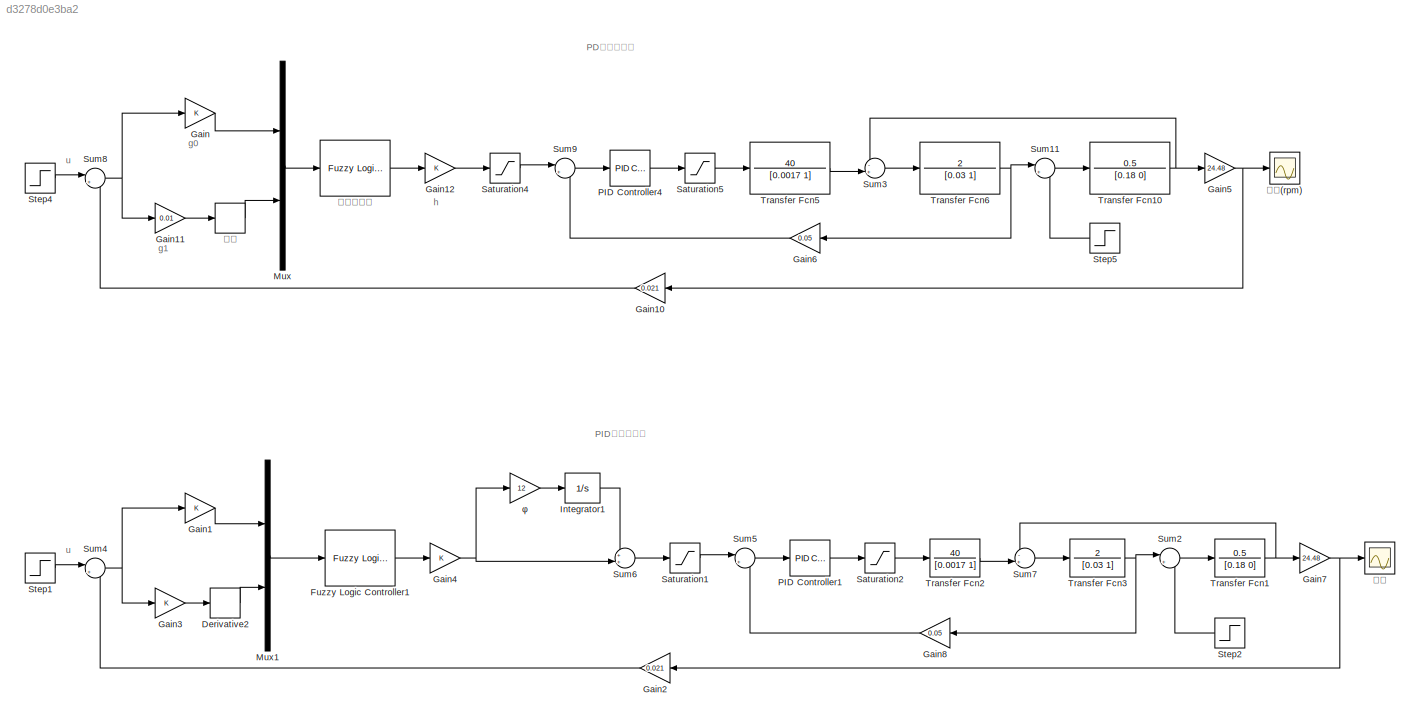
MODEL slx_d3278d0e3ba2
KIND model
CONFIG AbsTol = auto
CONFIG EnableMultiTasking = off
CONFIG FixedStep = auto
CONFIG MaxStep = auto
CONFIG MinStep = auto
CONFIG RelTol = 1e-3
CONFIG SampleTimeConstraint = Unconstrained
CONFIG SolverName = VariableStepAuto
CONFIG StartTime = 0.0
CONFIG StopTime = 5
BLOCK [Derivative] Derivative2
BLOCK [Reference] Fuzzy Logic Controller1  REF=fuzblock/Fuzzy Logic   (lib defined in mdl_858b3b3e7478)
Controller
  Ports = [1, 1]
  SourceBlock = fuzblock/Fuzzy Logic \nController
  SourceProductBaseCode = FL
  SourceType = Fuzzy Inference System
BLOCK [Gain] Gain
BLOCK [Gain] Gain1
BLOCK [Gain] Gain10
  Gain = 0.021
BLOCK [Gain] Gain11
  Gain = 0.01
BLOCK [Gain] Gain12
BLOCK [Gain] Gain2
  Gain = 0.021
BLOCK [Gain] Gain3
BLOCK [Gain] Gain4
BLOCK [Gain] Gain5
  Gain = 24.48
BLOCK [Gain] Gain6
  Gain = 0.05
BLOCK [Gain] Gain7
  Gain = 24.48
BLOCK [Gain] Gain8
  Gain = 0.05
BLOCK [Integrator] Integrator1
  LowerSaturationLimit = -0.1
  Ports = [1, 1]
  UpperSaturationLimit = 0.1
BLOCK [Mux] Mux
  DisplayOption = bar
  Inputs = 2
  Ports = [2, 1]
BLOCK [Mux] Mux1
  DisplayOption = bar
  Inputs = 2
  Ports = [2, 1]
BLOCK [Reference] PID Controller1  REF=pid_lib/PID Controller
  Ports = [1, 1]
  SourceBlock = pid_lib/PID Controller
  SourceProductBaseCode = SL
  SourceType = PID 1dof
BLOCK [Reference] PID Controller4  REF=pid_lib/PID Controller
  Ports = [1, 1]
  SourceBlock = pid_lib/PID Controller
  SourceProductBaseCode = SL
  SourceType = PID 1dof
BLOCK [Saturate] Saturation1
  LowerLimit = -200
  UpperLimit = 200
BLOCK [Saturate] Saturation2
  LowerLimit = -100
  UpperLimit = 100
BLOCK [Saturate] Saturation4
  LowerLimit = -200
  UpperLimit = 200
BLOCK [Saturate] Saturation5
  LowerLimit = -100
  UpperLimit = 100
BLOCK [Step] Step1
  After = 10
  SampleTime = 0
  Time = 0
BLOCK [Step] Step2
  After = 10
  SampleTime = 0
  Time = 2
BLOCK [Step] Step4
  After = 10
  SampleTime = 0
  Time = 0
BLOCK [Step] Step5
  After = 10
  SampleTime = 0
  Time = 2
BLOCK [Sum] Sum11
  Inputs = |+-
  Ports = [2, 1]
BLOCK [Sum] Sum2
  Inputs = |+-
  Ports = [2, 1]
BLOCK [Sum] Sum3
  Inputs = -+|
  Ports = [2, 1]
BLOCK [Sum] Sum4
  Inputs = |+-
  Ports = [2, 1]
BLOCK [Sum] Sum5
  Inputs = |+-
  Ports = [2, 1]
BLOCK [Sum] Sum6
  Inputs = ++|
  Ports = [2, 1]
BLOCK [Sum] Sum7
  Inputs = -+|
  Ports = [2, 1]
BLOCK [Sum] Sum8
  Inputs = |+-
  Ports = [2, 1]
BLOCK [Sum] Sum9
  Inputs = |+-
  Ports = [2, 1]
BLOCK [TransferFcn] Transfer Fcn1
  Denominator = [0.18 0]
  Numerator = 0.5
BLOCK [TransferFcn] Transfer Fcn10
  Denominator = [0.18 0]
  Numerator = 0.5
BLOCK [TransferFcn] Transfer Fcn2
  Denominator = [0.0017 1]
  Numerator = 40
BLOCK [TransferFcn] Transfer Fcn3
  Denominator = [0.03 1]
  Numerator = 2
BLOCK [TransferFcn] Transfer Fcn5
  Denominator = [0.0017 1]
  Numerator = 40
BLOCK [TransferFcn] Transfer Fcn6
  Denominator = [0.03 1]
  Numerator = 2
BLOCK [Gain] φ
  Gain = 12
BLOCK [Derivative] 微分
BLOCK [Reference] 模糊控制器  REF=fuzblock/Fuzzy Logic   (lib defined in mdl_858b3b3e7478)
Controller
  Ports = [1, 1]
  SourceBlock = fuzblock/Fuzzy Logic \nController
  SourceProductBaseCode = FL
  SourceType = Fuzzy Inference System
BLOCK [Scope] 转速
  Floating = off
  NumInputPorts = 1
  Ports = [1]
  ScopeSpecificationString = Simulink.scopes.TimeScopeBlockCfg('CurrentConfiguration', extmgr.ConfigurationSet(extmgr.Configuration('Core','General UI',true),extmgr.Configuration('Core','Source UI',true),extmgr.Configuration('Sources','WiredSimulink',true),extmgr.Configuration('Visuals','Time Domain',true,'SerializedDisplays',{struct('MinYLimReal','-61.7008','MaxYLimReal','555.30718','YLabelReal','','MinYLimMag','0.00000','Ma...<+1406ch>
BLOCK [Scope] 转速(rpm)
  Floating = off
  NumInputPorts = 1
  Ports = [1]
  ScopeSpecificationString = Simulink.scopes.TimeScopeBlockCfg('CurrentConfiguration', extmgr.ConfigurationSet(extmgr.Configuration('Core','General UI',true),extmgr.Configuration('Core','Source UI',true),extmgr.Configuration('Sources','WiredSimulink',true,'DataLoggingVariableName','ScopeData14'),extmgr.Configuration('Visuals','Time Domain',true,'SerializedDisplays',{struct('MinYLimReal','-61.7008','MaxYLimReal','555.30718','Y...<+1446ch>
ANNOTATION (root): PD型模糊控制
ANNOTATION (root): PID型模糊控制
ANNOTATION (root): g0
ANNOTATION (root): g1
ANNOTATION (root): h
ANNOTATION (root): u
LINE Derivative2:1 -> Mux1:2
LINE Fuzzy Logic Controller1:1 -> Gain4:1
LINE Gain10:1 -> Sum8:2
LINE Gain11:1 -> 微分:1
LINE Gain12:1 -> Saturation4:1
LINE Gain1:1 -> Mux1:1
LINE Gain2:1 -> Sum4:2
LINE Gain3:1 -> Derivative2:1
NET Gain4:1 -> Sum6:2, φ:1
NET Gain5:1 -> Gain10:1, 转速(rpm):1
LINE Gain6:1 -> Sum9:2
NET Gain7:1 -> Gain2:1, 转速:1
LINE Gain8:1 -> Sum5:2
LINE Gain:1 -> Mux:1
LINE Integrator1:1 -> Sum6:1
LINE Mux1:1 -> Fuzzy Logic Controller1:1
LINE Mux:1 -> 模糊控制器:1
LINE PID Controller1:1 -> Saturation2:1
LINE PID Controller4:1 -> Saturation5:1
LINE Saturation1:1 -> Sum5:1
LINE Saturation2:1 -> Transfer Fcn2:1
LINE Saturation4:1 -> Sum9:1
LINE Saturation5:1 -> Transfer Fcn5:1
LINE Step1:1 -> Sum4:1
LINE Step2:1 -> Sum2:2
LINE Step4:1 -> Sum8:1
LINE Step5:1 -> Sum11:2
LINE Sum11:1 -> Transfer Fcn10:1
LINE Sum2:1 -> Transfer Fcn1:1
LINE Sum3:1 -> Transfer Fcn6:1
NET Sum4:1 -> Gain1:1, Gain3:1
LINE Sum5:1 -> PID Controller1:1
LINE Sum6:1 -> Saturation1:1
LINE Sum7:1 -> Transfer Fcn3:1
NET Sum8:1 -> Gain11:1, Gain:1
LINE Sum9:1 -> PID Controller4:1
NET Transfer Fcn10:1 -> Gain5:1, Sum3:1
NET Transfer Fcn1:1 -> Gain7:1, Sum7:1
LINE Transfer Fcn2:1 -> Sum7:2
NET Transfer Fcn3:1 -> Gain8:1, Sum2:1
LINE Transfer Fcn5:1 -> Sum3:2
NET Transfer Fcn6:1 -> Gain6:1, Sum11:1
LINE φ:1 -> Integrator1:1
LINE 微分:1 -> Mux:2
LINE 模糊控制器:1 -> Gain12:1
note: NET lines group one-source signal fan-out (src -> all destinations, sorted); 1:1 wires keep LINE
